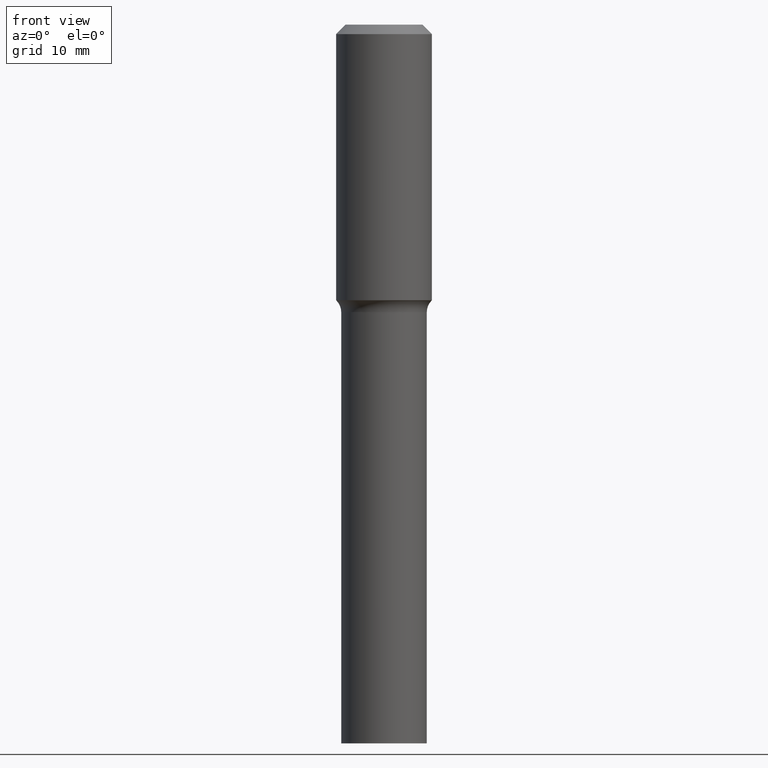
[diagram: clean part render]
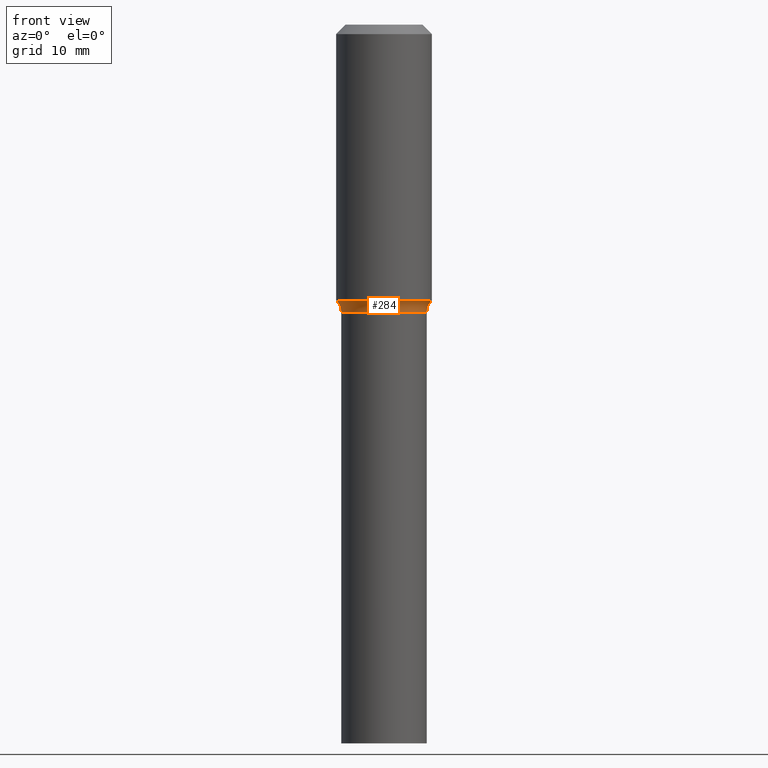
[diagram: same view with one face highlighted and labeled with its STEP entity id]
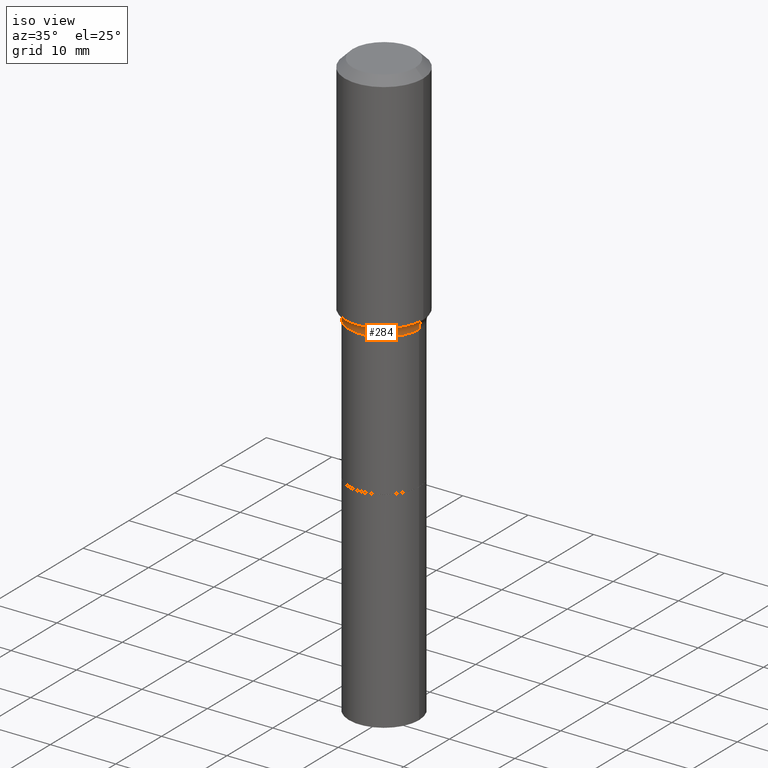
[diagram: same view with one face highlighted and labeled with its STEP entity id]
A machine part, front view. The second image highlights one B-rep face of the part: STEP entity #284.
A second angle (iso view) of the same face is appended — the face is thin or edge-on in the first view.
In plain terms, the highlighted toroidal blend (fillet) surface has major radius 7.3901 mm and minor (blend) radius 2.032 mm.
Its self-contained STEP definition (entity closure, byte-faithful):
#7 = CIRCLE ( 'NONE', #165, 0.08000000000000009881 ) ;
#14 = CIRCLE ( 'NONE', #315, 0.2109499999999999154 ) ;
#19 = DIRECTION ( 'NONE',  ( -6.982962677686266711E-15, -1.000000000000000000, 3.491481338843145583E-15 ) ) ;
#35 = CIRCLE ( 'NONE', #239, 0.08000000000000009881 ) ;
#40 = CARTESIAN_POINT ( 'NONE',  ( 3.465962939006193759E-29, -4.948476501542390442E-15, -1.417300000000000004 ) ) ;
#46 = ORIENTED_EDGE ( 'NONE', *, *, #445, .T. ) ;
#89 = AXIS2_PLACEMENT_3D ( 'NONE', #229, #224, #335 ) ;
#90 = VERTEX_POINT ( 'NONE', #432 ) ;
#99 = DIRECTION ( 'NONE',  ( 1.000000000000000000, -6.982962677686263555E-15, 0.000000000000000000 ) ) ;
#128 = VERTEX_POINT ( 'NONE', #267 ) ;
#140 = DIRECTION ( 'NONE',  ( -2.445468806185136597E-29, 3.491481338843145583E-15, 1.000000000000000000 ) ) ;
#165 = AXIS2_PLACEMENT_3D ( 'NONE', #222, #19, #99 ) ;
#168 = VERTEX_POINT ( 'NONE', #260 ) ;
#170 = ORIENTED_EDGE ( 'NONE', *, *, #449, .T. ) ;
#210 = ORIENTED_EDGE ( 'NONE', *, *, #433, .F. ) ;
#218 = CARTESIAN_POINT ( 'NONE',  ( -0.2909499999999999309, -2.881152411848379048E-15, -1.417300000000000004 ) ) ;
#222 = CARTESIAN_POINT ( 'NONE',  ( 0.2909499999999999309, -6.980169492615208871E-15, -1.417300000000000004 ) ) ;
#224 = DIRECTION ( 'NONE',  ( -2.445468806185136597E-29, 3.491481338843145583E-15, 1.000000000000000000 ) ) ;
#229 = CARTESIAN_POINT ( 'NONE',  ( 3.332538481774012306E-29, -4.757981737760001593E-15, -1.362740131194999815 ) ) ;
#239 = AXIS2_PLACEMENT_3D ( 'NONE', #218, #379, #455 ) ;
#260 = CARTESIAN_POINT ( 'NONE',  ( 0.2109499999999999154, -6.421532478400307219E-15, -1.417300000000000004 ) ) ;
#267 = CARTESIAN_POINT ( 'NONE',  ( -0.2324417038704663652, -3.106384096031399596E-15, -1.362740131194999815 ) ) ;
#284 = ADVANCED_FACE ( 'NONE', ( #442 ), #364, .F. ) ;
#315 = AXIS2_PLACEMENT_3D ( 'NONE', #457, #140, #329 ) ;
#329 = DIRECTION ( 'NONE',  ( 1.000000000000000000, -6.982962677686265133E-15, 0.000000000000000000 ) ) ;
#335 = DIRECTION ( 'NONE',  ( 1.000000000000000000, -6.982962677686265922E-15, 0.000000000000000000 ) ) ;
#344 = CIRCLE ( 'NONE', #89, 0.2324417038704663652 ) ;
#355 = DIRECTION ( 'NONE',  ( -2.445468806185136597E-29, 3.491481338843145583E-15, 1.000000000000000000 ) ) ;
#362 = EDGE_CURVE ( 'NONE', #128, #90, #344, .T. ) ;
#364 = TOROIDAL_SURFACE ( 'NONE', #436, 0.2909499999999999309, 0.08000000000000009881 ) ;
#373 = EDGE_LOOP ( 'NONE', ( #428, #46, #170, #210 ) ) ;
#379 = DIRECTION ( 'NONE',  ( 7.105427357601001859E-15, 1.000000000000000000, -3.491481338843145583E-15 ) ) ;
#428 = ORIENTED_EDGE ( 'NONE', *, *, #362, .F. ) ;
#432 = CARTESIAN_POINT ( 'NONE',  ( 0.2324417038704663652, -6.381113480625271103E-15, -1.362740131194999815 ) ) ;
#433 = EDGE_CURVE ( 'NONE', #90, #168, #7, .T. ) ;
#436 = AXIS2_PLACEMENT_3D ( 'NONE', #40, #355, #437 ) ;
#437 = DIRECTION ( 'NONE',  ( 1.000000000000000000, -6.982962677686268288E-15, 4.883557194083112901E-29 ) ) ;
#441 = VERTEX_POINT ( 'NONE', #505 ) ;
#442 = FACE_OUTER_BOUND ( 'NONE', #373, .T. ) ;
#445 = EDGE_CURVE ( 'NONE', #128, #441, #35, .T. ) ;
#449 = EDGE_CURVE ( 'NONE', #441, #168, #14, .T. ) ;
#455 = DIRECTION ( 'NONE',  ( -1.000000000000000000, 7.105427357601001859E-15, 0.000000000000000000 ) ) ;
#457 = CARTESIAN_POINT ( 'NONE',  ( 3.465962939006193759E-29, -4.948476501542390442E-15, -1.417300000000000004 ) ) ;
#505 = CARTESIAN_POINT ( 'NONE',  ( -0.2109499999999999154, -4.946559224485457388E-15, -1.417300000000000004 ) ) ;